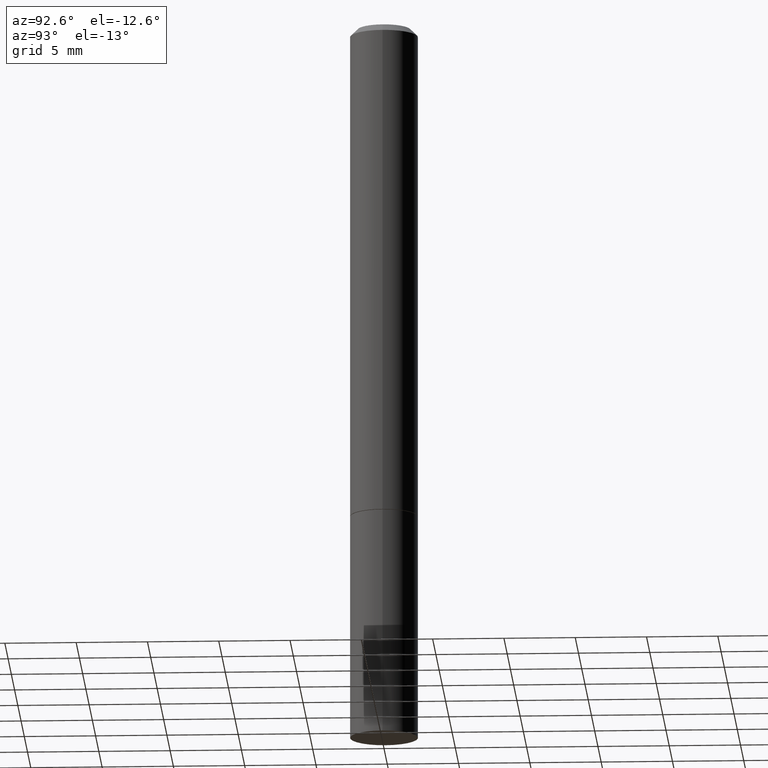
[diagram: clean part render]
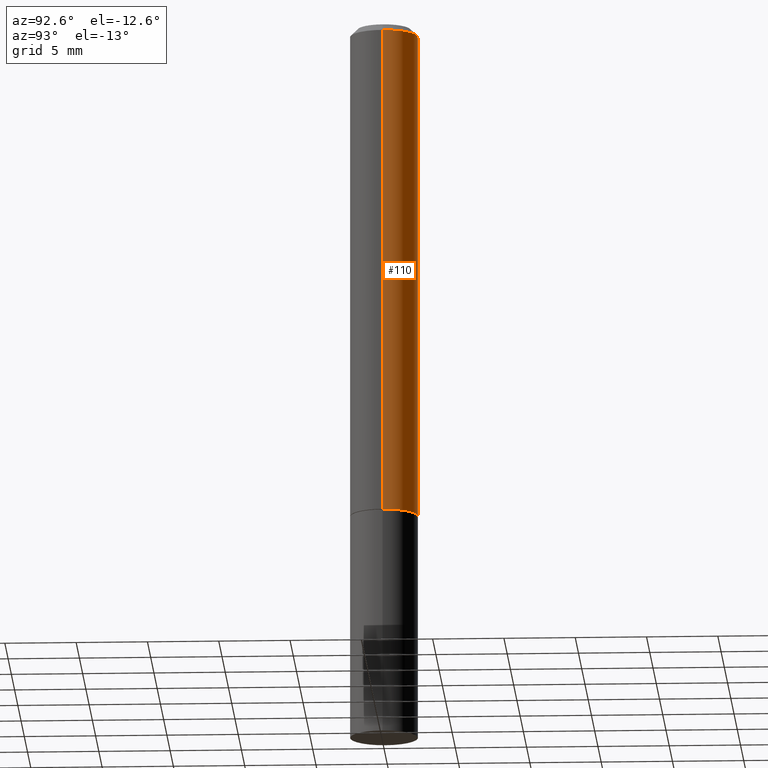
[diagram: same view with one face highlighted and labeled with its STEP entity id]
A machine part, auxiliary view. The second image highlights one B-rep face of the part: STEP entity #110.
In plain terms, the highlighted cylindrical surface (edge-blend (fillet) strip) has radius 2.3812 mm, axis along (-0, 0, 1).
Its self-contained STEP definition (entity closure, byte-faithful):
#1 = CARTESIAN_POINT ( 'NONE',  ( 4.890937612370281041E-31, -6.982962677686302702E-17, -0.02000000000000003511 ) ) ;
#35 = VERTEX_POINT ( 'NONE', #44 ) ;
#37 = ORIENTED_EDGE ( 'NONE', *, *, #107, .T. ) ;
#39 = EDGE_CURVE ( 'NONE', #355, #61, #45, .T. ) ;
#44 = CARTESIAN_POINT ( 'NONE',  ( 0.09374999999999984734, -7.130013140679430017E-16, -0.02000000000000003511 ) ) ;
#45 = CIRCLE ( 'NONE', #292, 0.09374999999999998612 ) ;
#57 = CARTESIAN_POINT ( 'NONE',  ( -0.09374999999999984734, 5.848231242562233185E-16, -0.02000000000000003511 ) ) ;
#61 = VERTEX_POINT ( 'NONE', #119 ) ;
#84 = CARTESIAN_POINT ( 'NONE',  ( 0.000000000000000000, 0.000000000000000000, 0.000000000000000000 ) ) ;
#93 = ORIENTED_EDGE ( 'NONE', *, *, #334, .F. ) ;
#107 = EDGE_CURVE ( 'NONE', #61, #127, #287, .T. ) ;
#110 = ADVANCED_FACE ( 'NONE', ( #173 ), #347, .T. ) ;
#118 = DIRECTION ( 'NONE',  ( 1.000000000000000000, -6.982962677686263555E-15, 0.000000000000000000 ) ) ;
#119 = CARTESIAN_POINT ( 'NONE',  ( -0.09374999999999998612, -1.767428678398576714E-15, -1.373999999999999666 ) ) ;
#127 = VERTEX_POINT ( 'NONE', #57 ) ;
#135 = CARTESIAN_POINT ( 'NONE',  ( 0.09374999999999998612, -5.451948110603567849E-15, -1.373999999999999666 ) ) ;
#137 = DIRECTION ( 'NONE',  ( -2.445468806185136877E-29, 3.491481338843145188E-15, 1.000000000000000000 ) ) ;
#141 = CIRCLE ( 'NONE', #353, 0.09374999999999984734 ) ;
#157 = CARTESIAN_POINT ( 'NONE',  ( 3.360074139698376657E-29, -4.797295359570480345E-15, -1.373999999999999666 ) ) ;
#173 = FACE_OUTER_BOUND ( 'NONE', #358, .T. ) ;
#175 = DIRECTION ( 'NONE',  ( -2.445468806185136877E-29, 3.491481338843145188E-15, 1.000000000000000000 ) ) ;
#176 = AXIS2_PLACEMENT_3D ( 'NONE', #84, #249, #251 ) ;
#180 = EDGE_CURVE ( 'NONE', #355, #35, #323, .T. ) ;
#186 = DIRECTION ( 'NONE',  ( 1.000000000000000000, -6.982962677686266711E-15, 0.000000000000000000 ) ) ;
#195 = ORIENTED_EDGE ( 'NONE', *, *, #39, .T. ) ;
#211 = VECTOR ( 'NONE', #175, 39.37007874015748143 ) ;
#237 = CARTESIAN_POINT ( 'NONE',  ( -0.09374999999999991673, 6.661338147750933326E-16, -4.611501647113969791E-30 ) ) ;
#243 = DIRECTION ( 'NONE',  ( -2.445468806185136597E-29, 3.491481338843145583E-15, 1.000000000000000000 ) ) ;
#249 = DIRECTION ( 'NONE',  ( -2.445468806185136597E-29, 3.491481338843145583E-15, 1.000000000000000000 ) ) ;
#251 = DIRECTION ( 'NONE',  ( 1.000000000000000000, -6.982962677686266711E-15, 4.876176775795935793E-29 ) ) ;
#259 = DIRECTION ( 'NONE',  ( -2.445468806185136597E-29, 3.491481338843145583E-15, 1.000000000000000000 ) ) ;
#263 = VECTOR ( 'NONE', #137, 39.37007874015748143 ) ;
#287 = LINE ( 'NONE', #237, #211 ) ;
#292 = AXIS2_PLACEMENT_3D ( 'NONE', #157, #243, #118 ) ;
#323 = LINE ( 'NONE', #365, #263 ) ;
#329 = ORIENTED_EDGE ( 'NONE', *, *, #180, .F. ) ;
#334 = EDGE_CURVE ( 'NONE', #35, #127, #141, .T. ) ;
#347 = CYLINDRICAL_SURFACE ( 'NONE', #176, 0.09374999999999991673 ) ;
#353 = AXIS2_PLACEMENT_3D ( 'NONE', #1, #259, #186 ) ;
#355 = VERTEX_POINT ( 'NONE', #135 ) ;
#358 = EDGE_LOOP ( 'NONE', ( #195, #37, #93, #329 ) ) ;
#365 = CARTESIAN_POINT ( 'NONE',  ( 0.09374999999999991673, -6.546527510330869125E-16, 4.571415727308685602E-30 ) ) ;